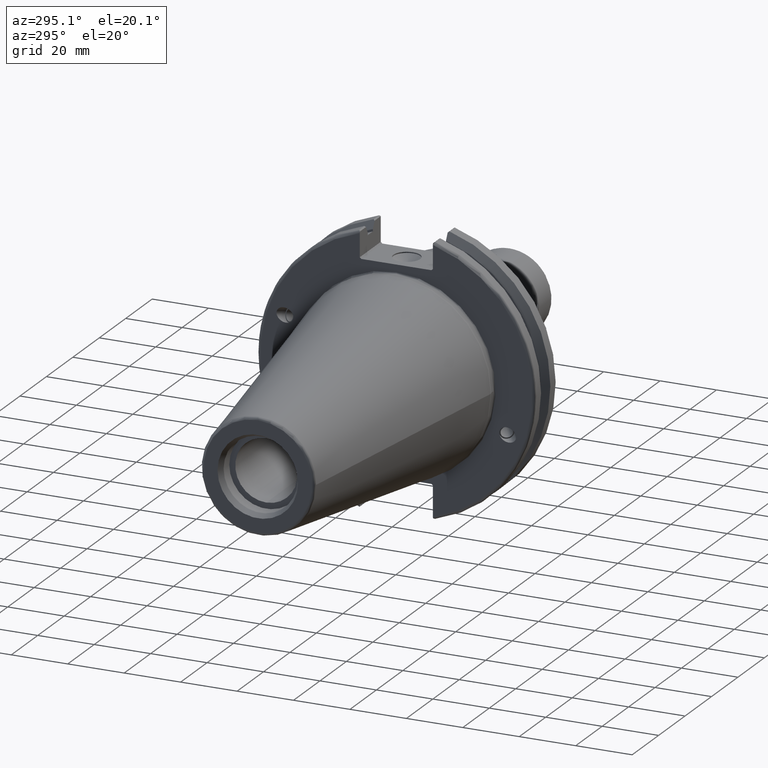
[diagram: clean part render]
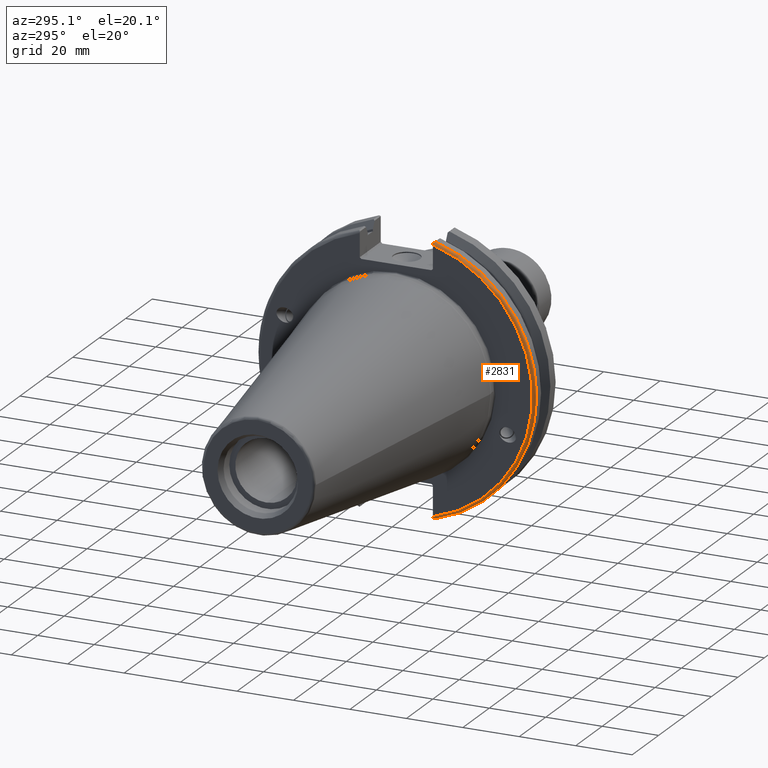
[diagram: same view with one face highlighted and labeled with its STEP entity id]
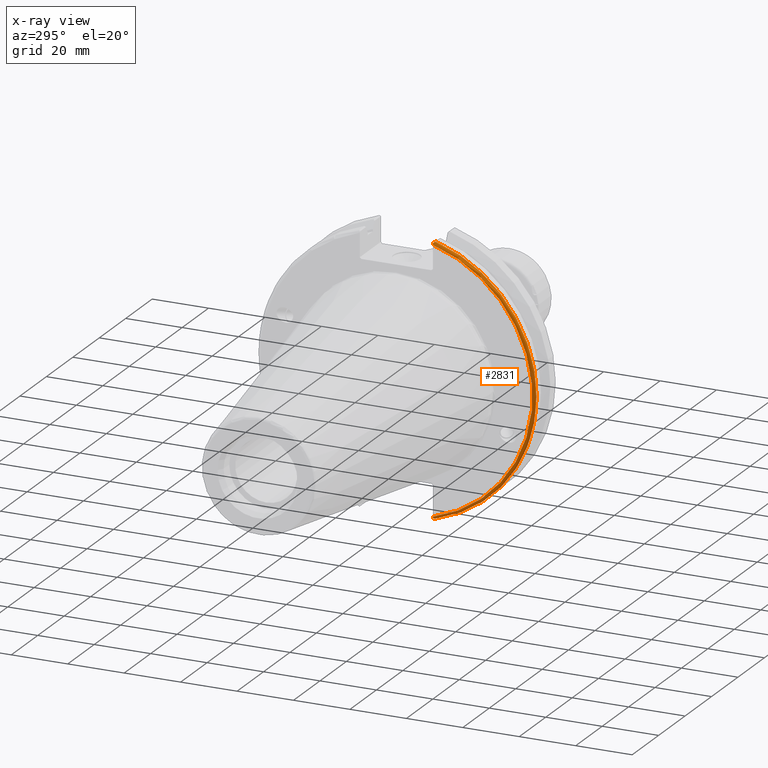
[diagram: x-ray of the same camera — body ghosted, the highlighted face saturated]
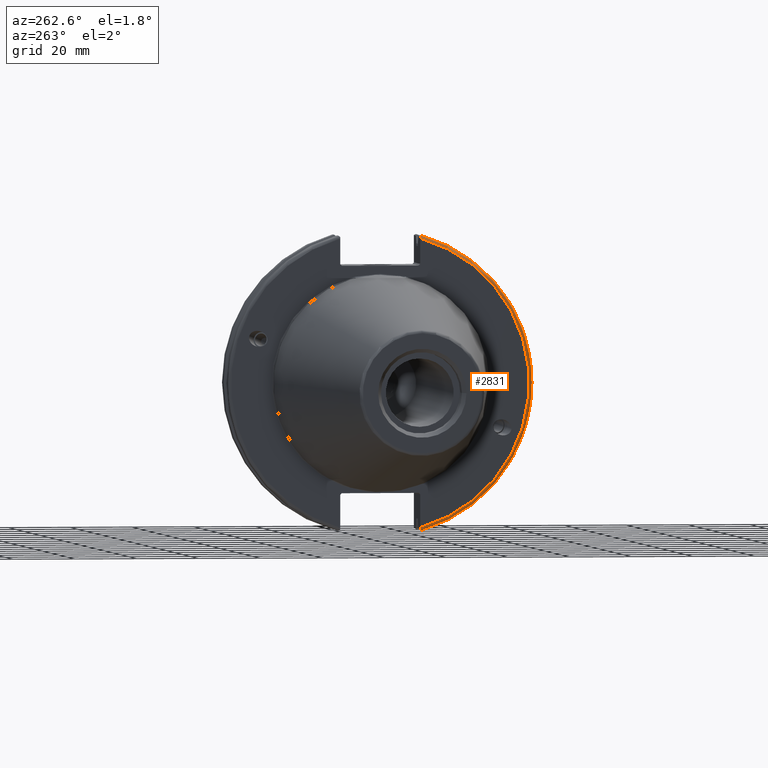
[diagram: same view with one face highlighted and labeled with its STEP entity id]
A machine part, auxiliary view. The second image highlights one B-rep face of the part: STEP entity #2831.
The next image is the same camera in x-ray: the body ghosted, the highlighted face saturated — about 0% of this face is hidden behind the body in this view.
A second angle (auxiliary view) of the same face is appended — the face is thin or edge-on in the first view.
In plain terms, the highlighted toroidal blend (fillet) surface has major radius 48.2125 mm and minor (blend) radius 1 mm.
Its self-contained STEP definition (entity closure, byte-faithful):
#445=TOROIDAL_SURFACE('',#3195,48.2125,1.);
#510=B_SPLINE_CURVE_WITH_KNOTS('',3,(#5000,#5001,#5002,#5003,#5004,#5005),
 .UNSPECIFIED.,.F.,.F.,(4,2,4),(0.0976892167532858,0.112000071948292,0.150881870548587),
 .UNSPECIFIED.);
#517=B_SPLINE_CURVE_WITH_KNOTS('',3,(#5110,#5111,#5112,#5113,#5114,#5115,
#5116,#5117),.UNSPECIFIED.,.F.,.F.,(4,2,2,4),(-0.104075769062722,-0.0730268503455485,
-0.034363987365627,0.),.UNSPECIFIED.);
#518=B_SPLINE_CURVE_WITH_KNOTS('',3,(#5120,#5121,#5122,#5123,#5124,#5125,
#5126,#5127),.UNSPECIFIED.,.F.,.F.,(4,2,2,4),(0.,0.0343639873656262,0.073026850345548,
0.104075769062723),.UNSPECIFIED.);
#519=B_SPLINE_CURVE_WITH_KNOTS('',3,(#5128,#5129,#5130,#5131,#5132,#5133),
 .UNSPECIFIED.,.F.,.F.,(4,2,4),(0.452859340315922,0.491741138916218,0.506051994111223),
 .UNSPECIFIED.);
#663=CIRCLE('',#3180,48.2125);
#670=CIRCLE('',#3196,49.2125);
#805=FACE_OUTER_BOUND('',#967,.T.);
#967=EDGE_LOOP('',(#2322,#2323,#2324,#2325,#2326,#2327));
#1497=VERTEX_POINT('',#4927);
#1498=VERTEX_POINT('',#4928);
#1517=VERTEX_POINT('',#4999);
#1542=VERTEX_POINT('',#5108);
#1543=VERTEX_POINT('',#5109);
#1544=VERTEX_POINT('',#5118);
#1774=EDGE_CURVE('',#1497,#1498,#663,.T.);
#1798=EDGE_CURVE('',#1517,#1497,#510,.T.);
#1832=EDGE_CURVE('',#1542,#1543,#517,.T.);
#1833=EDGE_CURVE('',#1543,#1544,#670,.T.);
#1834=EDGE_CURVE('',#1544,#1517,#518,.T.);
#1835=EDGE_CURVE('',#1498,#1542,#519,.T.);
#2322=ORIENTED_EDGE('',*,*,#1832,.T.);
#2323=ORIENTED_EDGE('',*,*,#1833,.T.);
#2324=ORIENTED_EDGE('',*,*,#1834,.T.);
#2325=ORIENTED_EDGE('',*,*,#1798,.T.);
#2326=ORIENTED_EDGE('',*,*,#1774,.T.);
#2327=ORIENTED_EDGE('',*,*,#1835,.T.);
#2831=ADVANCED_FACE('',(#805),#445,.T.);
#3180=AXIS2_PLACEMENT_3D('',#4929,#3675,#3676);
#3195=AXIS2_PLACEMENT_3D('',#5107,#3742,#3743);
#3196=AXIS2_PLACEMENT_3D('',#5119,#3744,#3745);
#3675=DIRECTION('center_axis',(1.,0.,0.));
#3676=DIRECTION('ref_axis',(0.,-1.,1.60812264967664E-16));
#3742=DIRECTION('center_axis',(1.,0.,0.));
#3743=DIRECTION('ref_axis',(0.,0.,-1.));
#3744=DIRECTION('center_axis',(-1.,0.,0.));
#3745=DIRECTION('ref_axis',(0.,-1.,1.60812264967664E-16));
#4927=CARTESIAN_POINT('',(3.175,-12.95,46.4407434937254));
#4928=CARTESIAN_POINT('',(3.175,-12.95,-46.4407434937254));
#4929=CARTESIAN_POINT('Origin',(3.175,0.,0.));
#4999=CARTESIAN_POINT('',(3.31949794294344,-12.95,46.9780755322918));
#5000=CARTESIAN_POINT('Ctrl Pts',(3.31949794294344,-12.95,46.9780755322918));
#5001=CARTESIAN_POINT('Ctrl Pts',(3.29341556483839,-12.95,46.9333752207329));
#5002=CARTESIAN_POINT('Ctrl Pts',(3.27115672912336,-12.95,46.887363294568));
#5003=CARTESIAN_POINT('Ctrl Pts',(3.20453530071253,-12.95,46.7230464903732));
#5004=CARTESIAN_POINT('Ctrl Pts',(3.175,-12.95,46.5703494890597));
#5005=CARTESIAN_POINT('Ctrl Pts',(3.175,-12.95,46.4407434937254));
#5107=CARTESIAN_POINT('Origin',(4.175,0.,0.));
#5108=CARTESIAN_POINT('',(3.31949794294343,-12.95,-46.9780755322917));
#5109=CARTESIAN_POINT('',(4.175,-13.4317035994433,-47.3440544806494));
#5110=CARTESIAN_POINT('Ctrl Pts',(3.31949794294343,-12.95,-46.9780755322917));
#5111=CARTESIAN_POINT('Ctrl Pts',(3.36785032278753,-13.0300321736484,-47.0388807469102));
#5112=CARTESIAN_POINT('Ctrl Pts',(3.43235971798504,-13.1083611826073,-47.0983919657547));
#5113=CARTESIAN_POINT('Ctrl Pts',(3.58507512107923,-13.2478194810696,-47.2043467509586));
#5114=CARTESIAN_POINT('Ctrl Pts',(3.70638116490964,-13.3242014686233,-47.2623787015413));
#5115=CARTESIAN_POINT('Ctrl Pts',(3.92661103245834,-13.4067722493645,-47.3251126473446));
#5116=CARTESIAN_POINT('Ctrl Pts',(4.06045337544791,-13.4317035994434,-47.3440544806494));
#5117=CARTESIAN_POINT('Ctrl Pts',(4.175,-13.4317035994434,-47.3440544806494));
#5118=CARTESIAN_POINT('',(4.175,-13.4317035994433,47.3440544806494));
#5119=CARTESIAN_POINT('Origin',(4.175,0.,0.));
#5120=CARTESIAN_POINT('Ctrl Pts',(4.175,-13.4317035994433,47.3440544806494));
#5121=CARTESIAN_POINT('Ctrl Pts',(4.06045337544791,-13.4317035994433,47.3440544806494));
#5122=CARTESIAN_POINT('Ctrl Pts',(3.92661103245835,-13.4067722493645,47.3251126473446));
#5123=CARTESIAN_POINT('Ctrl Pts',(3.70638116490965,-13.3242014686233,47.2623787015413));
#5124=CARTESIAN_POINT('Ctrl Pts',(3.58507512107923,-13.2478194810695,47.2043467509586));
#5125=CARTESIAN_POINT('Ctrl Pts',(3.43235971798504,-13.1083611826073,47.0983919657547));
#5126=CARTESIAN_POINT('Ctrl Pts',(3.36785032278754,-13.0300321736484,47.0388807469102));
#5127=CARTESIAN_POINT('Ctrl Pts',(3.31949794294344,-12.95,46.9780755322918));
#5128=CARTESIAN_POINT('Ctrl Pts',(3.175,-12.95,-46.4407434937254));
#5129=CARTESIAN_POINT('Ctrl Pts',(3.175,-12.95,-46.5703494890597));
#5130=CARTESIAN_POINT('Ctrl Pts',(3.20453530071253,-12.95,-46.7230464903732));
#5131=CARTESIAN_POINT('Ctrl Pts',(3.27115672912336,-12.95,-46.887363294568));
#5132=CARTESIAN_POINT('Ctrl Pts',(3.29341556483838,-12.95,-46.9333752207329));
#5133=CARTESIAN_POINT('Ctrl Pts',(3.31949794294343,-12.95,-46.9780755322917));